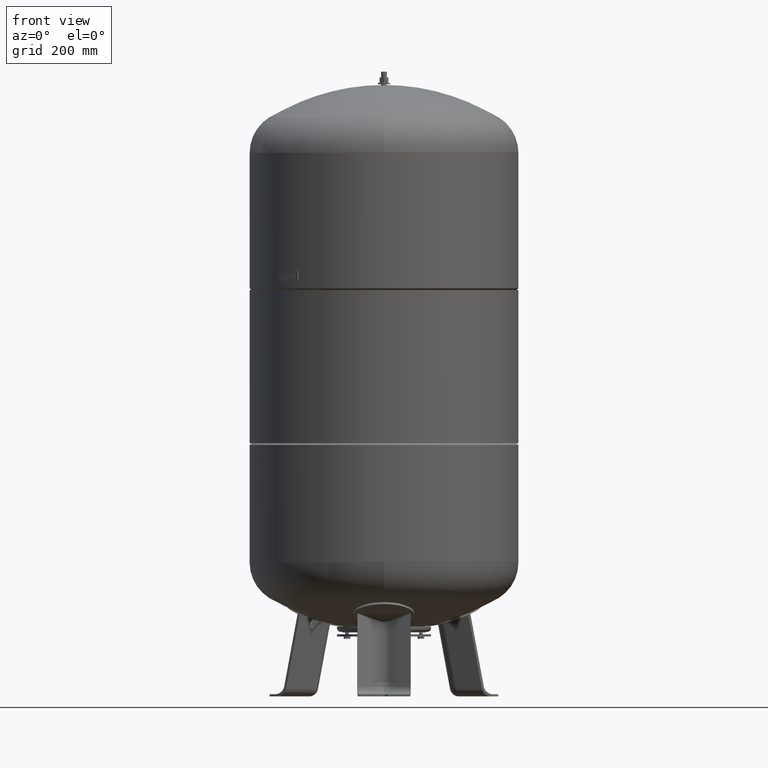
[diagram: clean part render]
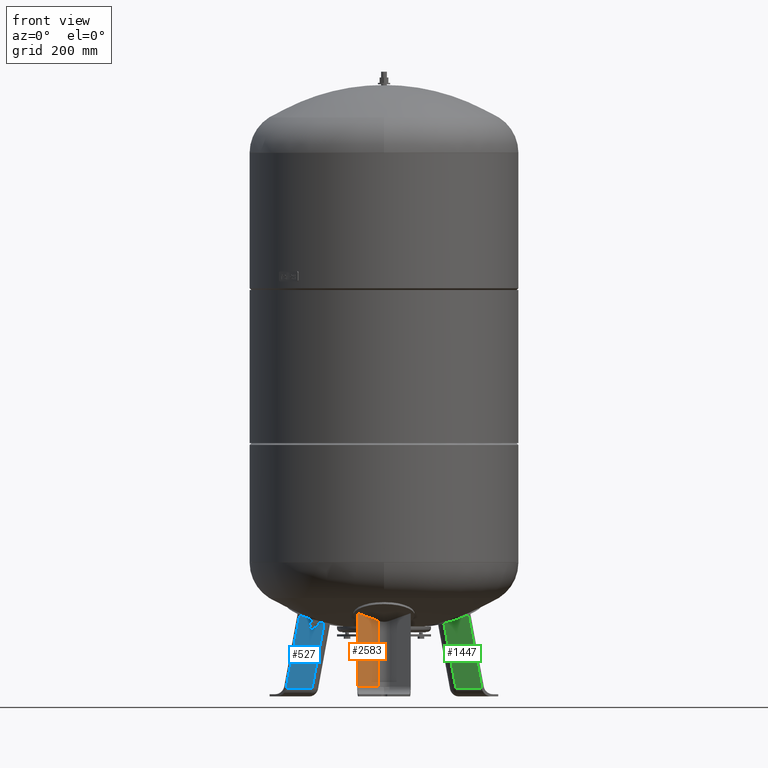
[diagram: same view with three faces highlighted in distinct colors, each labeled with its STEP entity id]
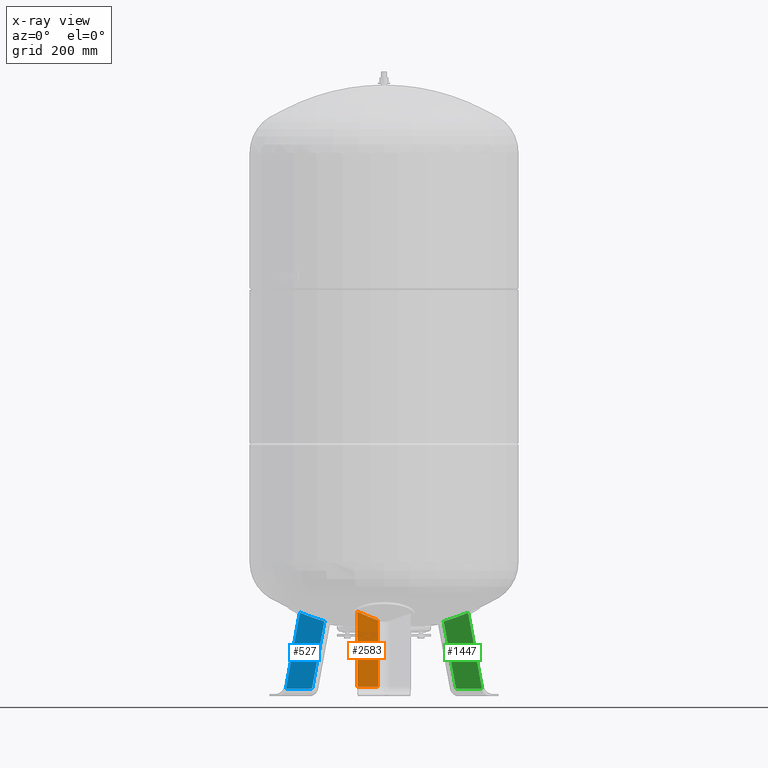
[diagram: x-ray of the same camera — body ghosted, the three highlighted faces saturated]
A machine part, front view with three faces highlighted in distinct colors.
The next image is the same camera in x-ray (body ghosted, the three faces saturated) — at least one of them is partly hidden behind the body in this view.
Their STEP definitions:

[orange] entity #2583 — the highlighted planar face has unit normal (0.6455, -0.7471, 0.1588).
#2207=CARTESIAN_POINT('',(-16.136450826554519,-226.124712592942840,27.029948423057292));
#2208=VERTEX_POINT('',#2207);
#2286=CARTESIAN_POINT('',(-16.136450826554533,-187.380694359206050,209.306223167677190));
#2287=VERTEX_POINT('',#2286);
#2368=CARTESIAN_POINT('',(-72.837866169854991,-231.331363688051060,233.000000000000030));
#2369=VERTEX_POINT('',#2368);
#2377=CARTESIAN_POINT('',(-16.136450826554533,-187.380694359206050,209.306223167677190));
#2378=CARTESIAN_POINT('',(-17.841674515575615,-188.725317218612670,209.911227339780880));
#2379=CARTESIAN_POINT('',(-19.549197401052137,-190.069381720624190,210.528203562929860));
#2380=CARTESIAN_POINT('',(-27.027584395690280,-195.946083784528380,213.276729921399890));
#2381=CARTESIAN_POINT('',(-32.821119649068947,-200.473342909909860,215.525731482895940));
#2382=CARTESIAN_POINT('',(-49.986371892525639,-213.819325055359400,222.506751583386570));
#2383=CARTESIAN_POINT('',(-61.407704358636423,-222.612666373158560,227.559845947390160));
#2384=CARTESIAN_POINT('',(-72.837866169854991,-231.331363688051060,233.000000000000030));
#2385=B_SPLINE_CURVE_WITH_KNOTS('',3,(#2377,#2378,#2379,#2380,#2381,#2382,#2383,#2384),.UNSPECIFIED.,.F.,.U.,(4,2,2,4),(5.937335443723129,6.588195328792665,8.784260438390220,13.073486937020286),.UNSPECIFIED.);
#2386=EDGE_CURVE('',#2287,#2369,#2385,.T.);
#2541=CARTESIAN_POINT('',(-16.136450826554533,-187.380694359206050,209.306223167677190));
#2542=DIRECTION('',(7.625959E-017,-0.207911690817760,-0.978147600733805));
#2543=VECTOR('',#2542,186.348435152196260);
#2544=LINE('',#2541,#2543);
#2545=EDGE_CURVE('',#2287,#2208,#2544,.T.);
#2560=CARTESIAN_POINT('',(5.588417E-015,-232.326671309510000,-67.735293817669458));
#2561=DIRECTION('',(0.645458033062181,-0.747104967402683,0.158802063077708));
#2562=DIRECTION('',(1.504084E-016,0.207911690817760,0.978147600733806));
#2563=AXIS2_PLACEMENT_3D('',#2560,#2561,#2562);
#2564=PLANE('',#2563);
#2565=CARTESIAN_POINT('',(-72.837866169855019,-275.111649658243320,27.029948423057292));
#2566=VERTEX_POINT('',#2565);
#2567=CARTESIAN_POINT('',(-72.837866169855019,-275.111649658243320,27.029948423057292));
#2568=DIRECTION('',(1.349741E-016,0.207911690817760,0.978147600733805));
#2569=VECTOR('',#2568,210.571545053552460);
#2570=LINE('',#2567,#2569);
#2571=EDGE_CURVE('',#2566,#2369,#2570,.T.);
#2572=ORIENTED_EDGE('',*,*,#2571,.F.);
#2573=CARTESIAN_POINT('',(-16.136450826554519,-226.124712592942840,27.029948423057292));
#2574=DIRECTION('',(-0.756707249513242,-0.653753882232530,0.0));
#2575=VECTOR('',#2574,74.931772333057651);
#2576=LINE('',#2573,#2575);
#2577=EDGE_CURVE('',#2208,#2566,#2576,.T.);
#2578=ORIENTED_EDGE('',*,*,#2577,.F.);
#2579=ORIENTED_EDGE('',*,*,#2545,.F.);
#2580=ORIENTED_EDGE('',*,*,#2386,.T.);
#2581=EDGE_LOOP('',(#2572,#2578,#2579,#2580));
#2582=FACE_OUTER_BOUND('',#2581,.T.);
#2583=ADVANCED_FACE('',(#2582),#2564,.T.);

[blue] entity #527 — the highlighted planar face has unit normal (0.3243, -0.9325, -0.1588).
#306=CARTESIAN_POINT('',(-198.135653734646950,95.760904562808236,21.029948423057281));
#307=VERTEX_POINT('',#306);
#374=CARTESIAN_POINT('',(-231.247438715379360,48.640281420860873,230.120878968208870));
#375=VERTEX_POINT('',#374);
#383=CARTESIAN_POINT('',(-164.009331508000800,76.058063238802163,206.419109493446830));
#384=VERTEX_POINT('',#383);
#385=CARTESIAN_POINT('',(-164.009331508000800,76.058063238802163,206.419109493446830));
#386=CARTESIAN_POINT('',(-167.296726295767600,74.749478270491437,207.390483448243740));
#387=CARTESIAN_POINT('',(-170.586376587281110,73.434638293147387,208.393982911335000));
#388=CARTESIAN_POINT('',(-180.606511789459030,69.414767171695416,211.538240111227370));
#389=CARTESIAN_POINT('',(-187.343946478439990,66.691476754780538,213.772030183208220));
#390=CARTESIAN_POINT('',(-206.481753689465450,58.903361117512517,220.425795489886210));
#391=CARTESIAN_POINT('',(-218.887273095988210,53.792416942164053,225.106085466333270));
#392=CARTESIAN_POINT('',(-231.247438715379360,48.640281420860873,230.120878968208870));
#393=B_SPLINE_CURVE_WITH_KNOTS('',3,(#385,#386,#387,#388,#389,#390,#391,#392),.UNSPECIFIED.,.F.,.U.,(4,2,2,4),(5.453253502265779,6.515864870681246,8.687819827574995,12.681292855444173),.UNSPECIFIED.);
#394=EDGE_CURVE('',#384,#375,#393,.T.);
#485=CARTESIAN_POINT('',(-164.009331508000800,76.058063238802163,206.419109493446830));
#486=DIRECTION('',(-0.180056805991956,0.103955845408880,-0.978147600733805));
#487=VECTOR('',#486,189.530865210230840);
#488=LINE('',#485,#487);
#489=EDGE_CURVE('',#384,#307,#488,.T.);
#504=CARTESIAN_POINT('',(-194.334005830255250,112.198790578796360,-67.735293817669458));
#505=DIRECTION('',(0.324282864533177,-0.932535537409927,-0.158802063077709));
#506=DIRECTION('',(-0.180056805991956,0.103955845408880,-0.978147600733806));
#507=AXIS2_PLACEMENT_3D('',#504,#505,#506);
#508=PLANE('',#507);
#509=CARTESIAN_POINT('',(-269.736768022737580,70.862106057392324,21.029948423057284));
#510=VERTEX_POINT('',#509);
#511=CARTESIAN_POINT('',(-269.736768022737580,70.862106057392324,21.029948423057284));
#512=DIRECTION('',(0.180056805991955,-0.103955845408880,0.978147600733806));
#513=VECTOR('',#512,213.762146314412800);
#514=LINE('',#511,#513);
#515=EDGE_CURVE('',#510,#375,#514,.T.);
#516=ORIENTED_EDGE('',*,*,#515,.F.);
#517=CARTESIAN_POINT('',(-198.135653734646950,95.760904562808236,21.029948423057281));
#518=DIRECTION('',(-0.944521094592691,-0.328450760190054,4.686537E-017));
#519=VECTOR('',#518,75.806792138366589);
#520=LINE('',#517,#519);
#521=EDGE_CURVE('',#307,#510,#520,.T.);
#522=ORIENTED_EDGE('',*,*,#521,.F.);
#523=ORIENTED_EDGE('',*,*,#489,.F.);
#524=ORIENTED_EDGE('',*,*,#394,.T.);
#525=EDGE_LOOP('',(#516,#522,#523,#524));
#526=FACE_OUTER_BOUND('',#525,.T.);
#527=ADVANCED_FACE('',(#526),#508,.T.);

[green] entity #1447 — the highlighted planar face has unit normal (-0.3243, -0.9325, -0.1588).
#1364=CARTESIAN_POINT('',(164.009331508000970,76.058063238802049,206.419109493446830));
#1365=VERTEX_POINT('',#1364);
#1381=CARTESIAN_POINT('',(231.247438715379450,48.640281420860759,230.120878968208760));
#1382=VERTEX_POINT('',#1381);
#1383=CARTESIAN_POINT('',(231.247438715379450,48.640281420860759,230.120878968208760));
#1384=CARTESIAN_POINT('',(218.887273095988350,53.792416942163925,225.106085466333040));
#1385=CARTESIAN_POINT('',(206.481753689465850,58.903361117512389,220.425795489885990));
#1386=CARTESIAN_POINT('',(187.343946478440390,66.691476754780354,213.772030183207990));
#1387=CARTESIAN_POINT('',(180.606511789459380,69.414767171695132,211.538240111227740));
#1388=CARTESIAN_POINT('',(170.586376587281620,73.434638293147060,208.393982911335310));
#1389=CARTESIAN_POINT('',(167.296726295767770,74.749478270491380,207.390483448243770));
#1390=CARTESIAN_POINT('',(164.009331508000970,76.058063238802049,206.419109493446830));
#1391=B_SPLINE_CURVE_WITH_KNOTS('',3,(#1383,#1384,#1385,#1386,#1387,#1388,#1389,#1390),.UNSPECIFIED.,.F.,.U.,(4,2,2,4),(536.762478861198470,540.755951889067660,542.927906845961390,543.990518214376830),.UNSPECIFIED.);
#1392=EDGE_CURVE('',#1382,#1365,#1391,.T.);
#1417=CARTESIAN_POINT('',(286.076618970567320,80.295923400639992,-67.735293817669458));
#1418=DIRECTION('',(-0.324282864533177,-0.932535537409927,-0.158802063077709));
#1419=DIRECTION('',(0.180056805991956,0.103955845408880,-0.978147600733806));
#1420=AXIS2_PLACEMENT_3D('',#1417,#1418,#1419);
#1421=PLANE('',#1420);
#1422=CARTESIAN_POINT('',(198.135653734647090,95.760904562808065,21.029948423057292));
#1423=VERTEX_POINT('',#1422);
#1424=CARTESIAN_POINT('',(198.135653734647090,95.760904562808065,21.029948423057292));
#1425=DIRECTION('',(-0.180056805991956,-0.103955845408880,0.978147600733805));
#1426=VECTOR('',#1425,189.530865210230810);
#1427=LINE('',#1424,#1426);
#1428=EDGE_CURVE('',#1423,#1365,#1427,.T.);
#1429=ORIENTED_EDGE('',*,*,#1428,.F.);
#1430=CARTESIAN_POINT('',(269.736768022737690,70.862106057392197,21.029948423057292));
#1431=VERTEX_POINT('',#1430);
#1432=CARTESIAN_POINT('',(269.736768022737690,70.862106057392197,21.029948423057292));
#1433=DIRECTION('',(-0.944521094592691,0.328450760190054,0.0));
#1434=VECTOR('',#1433,75.806792138366546);
#1435=LINE('',#1432,#1434);
#1436=EDGE_CURVE('',#1431,#1423,#1435,.T.);
#1437=ORIENTED_EDGE('',*,*,#1436,.F.);
#1438=CARTESIAN_POINT('',(269.736768022737690,70.862106057392197,21.029948423057292));
#1439=DIRECTION('',(-0.180056805991956,-0.103955845408880,0.978147600733805));
#1440=VECTOR('',#1439,213.762146314412720);
#1441=LINE('',#1438,#1440);
#1442=EDGE_CURVE('',#1431,#1382,#1441,.T.);
#1443=ORIENTED_EDGE('',*,*,#1442,.T.);
#1444=ORIENTED_EDGE('',*,*,#1392,.T.);
#1445=EDGE_LOOP('',(#1429,#1437,#1443,#1444));
#1446=FACE_OUTER_BOUND('',#1445,.T.);
#1447=ADVANCED_FACE('',(#1446),#1421,.T.);